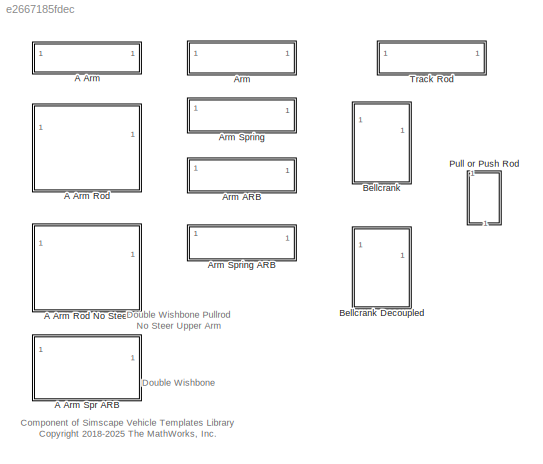
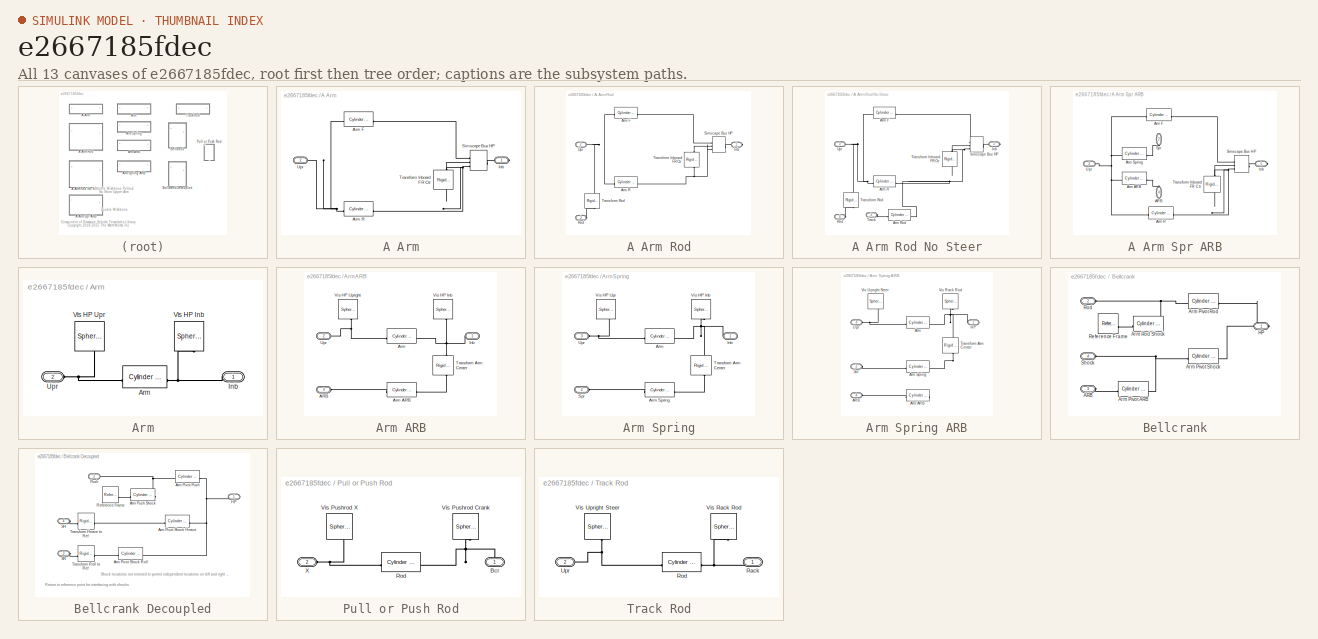
[diagram: thumbnail index - all 13 canvases of the model, root first then tree order]
MODEL slx_e2667185fdec
KIND library
CONFIG AbsTol = auto
CONFIG EnableMultiTasking = off
CONFIG FixedStep = auto
CONFIG MaxStep = auto
CONFIG MinStep = auto
CONFIG RelTol = 1e-3
CONFIG SampleTimeConstraint = Unconstrained
CONFIG SolverName = VariableStepAuto
CONFIG StartTime = 0.0
CONFIG StopTime = 10.0
BLOCK [SubSystem] A Arm
BLOCK [SubSystem] A Arm Rod
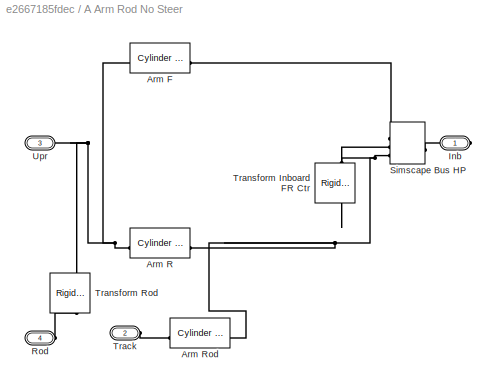
BLOCK [SubSystem] A Arm Rod No Steer
BLOCK [Reference] A Arm Rod No Steer/Arm F  REF=Suspension_Utilities/Cylinder Between
Two Points
  SourceBlock = Suspension_Utilities/Cylinder Between\nTwo Points
  SourceType = Cylinder between two points
BLOCK [Reference] A Arm Rod No Steer/Arm R  REF=Suspension_Utilities/Cylinder Between
Two Points
  SourceBlock = Suspension_Utilities/Cylinder Between\nTwo Points
  SourceType = Cylinder between two points
BLOCK [Reference] A Arm Rod No Steer/Arm Rod  REF=Suspension_Utilities/Cylinder Between
Two Points
  SourceBlock = Suspension_Utilities/Cylinder Between\nTwo Points
  SourceType = Cylinder between two points
BLOCK [PMIOPort] A Arm Rod No Steer/Inb
  Side = Right
BLOCK [PMIOPort] A Arm Rod No Steer/Rod
  Port = 4
  Side = Left
BLOCK [SimscapeBus] A Arm Rod No Steer/Simscape Bus HP
  HierarchyStrings = Af;Ac;Ar
BLOCK [PMIOPort] A Arm Rod No Steer/Track
  Port = 2
  Side = Left
BLOCK [Reference] A Arm Rod No Steer/Transform Inboard FR Ctr  REF=sm_lib/Frames and
Transforms/Rigid
Transform
  NameLocation = left
  SourceBlock = sm_lib/Frames and\nTransforms/Rigid\nTransform
  SourceType = Rigid\nTransform
BLOCK [Reference] A Arm Rod No Steer/Transform Rod  REF=sm_lib/Frames and
Transforms/Rigid
Transform
  NameLocation = right
  SourceBlock = sm_lib/Frames and\nTransforms/Rigid\nTransform
  SourceType = Rigid\nTransform
BLOCK [PMIOPort] A Arm Rod No Steer/Upr
  Port = 3
  Side = Left
BLOCK [Reference] A Arm Rod/Arm F  REF=Suspension_Utilities/Cylinder Between
Two Points
  SourceBlock = Suspension_Utilities/Cylinder Between\nTwo Points
  SourceType = Cylinder between two points
BLOCK [Reference] A Arm Rod/Arm R  REF=Suspension_Utilities/Cylinder Between
Two Points
  SourceBlock = Suspension_Utilities/Cylinder Between\nTwo Points
  SourceType = Cylinder between two points
BLOCK [PMIOPort] A Arm Rod/Inb
  Side = Right
BLOCK [PMIOPort] A Arm Rod/Rod
  Port = 3
  Side = Left
BLOCK [SimscapeBus] A Arm Rod/Simscape Bus HP
  HierarchyStrings = Af;Ac;Ar
BLOCK [Reference] A Arm Rod/Transform Inboard FR Ctr  REF=sm_lib/Frames and
Transforms/Rigid
Transform
  NameLocation = left
  SourceBlock = sm_lib/Frames and\nTransforms/Rigid\nTransform
  SourceType = Rigid\nTransform
BLOCK [Reference] A Arm Rod/Transform Rod  REF=sm_lib/Frames and
Transforms/Rigid
Transform
  NameLocation = right
  SourceBlock = sm_lib/Frames and\nTransforms/Rigid\nTransform
  SourceType = Rigid\nTransform
BLOCK [PMIOPort] A Arm Rod/Upr
  Port = 2
  Side = Left
BLOCK [SubSystem] A Arm Spr ARB
BLOCK [PMIOPort] A Arm Spr ARB/ARB
  NameLocation = right
  Port = 4
  Side = Left
BLOCK [Reference] A Arm Spr ARB/Arm ARB  REF=Suspension_Utilities/Cylinder Between
Two Points
  SourceBlock = Suspension_Utilities/Cylinder Between\nTwo Points
  SourceType = Cylinder between two points
BLOCK [Reference] A Arm Spr ARB/Arm F  REF=Suspension_Utilities/Cylinder Between
Two Points
  SourceBlock = Suspension_Utilities/Cylinder Between\nTwo Points
  SourceType = Cylinder between two points
BLOCK [Reference] A Arm Spr ARB/Arm R  REF=Suspension_Utilities/Cylinder Between
Two Points
  SourceBlock = Suspension_Utilities/Cylinder Between\nTwo Points
  SourceType = Cylinder between two points
BLOCK [Reference] A Arm Spr ARB/Arm Spring  REF=Suspension_Utilities/Cylinder Between
Two Points
  SourceBlock = Suspension_Utilities/Cylinder Between\nTwo Points
  SourceType = Cylinder between two points
BLOCK [PMIOPort] A Arm Spr ARB/Inb
  Side = Right
BLOCK [SimscapeBus] A Arm Spr ARB/Simscape Bus HP
  HierarchyStrings = Af;Ac;Ar
BLOCK [PMIOPort] A Arm Spr ARB/Spr
  NameLocation = right
  Port = 2
  Side = Left
BLOCK [Reference] A Arm Spr ARB/Transform Inboard FR Ctr  REF=sm_lib/Frames and
Transforms/Rigid
Transform
  NameLocation = left
  SourceBlock = sm_lib/Frames and\nTransforms/Rigid\nTransform
  SourceType = Rigid\nTransform
BLOCK [PMIOPort] A Arm Spr ARB/Upr
  Port = 3
  Side = Left
BLOCK [Reference] A Arm/Arm F  REF=Suspension_Utilities/Cylinder Between
Two Points
  SourceBlock = Suspension_Utilities/Cylinder Between\nTwo Points
  SourceType = Cylinder between two points
BLOCK [Reference] A Arm/Arm R  REF=Suspension_Utilities/Cylinder Between
Two Points
  SourceBlock = Suspension_Utilities/Cylinder Between\nTwo Points
  SourceType = Cylinder between two points
BLOCK [PMIOPort] A Arm/Inb
  Side = Right
BLOCK [SimscapeBus] A Arm/Simscape Bus HP
  HierarchyStrings = Af;Ac;Ar
BLOCK [Reference] A Arm/Transform Inboard FR Ctr  REF=sm_lib/Frames and
Transforms/Rigid
Transform
  NameLocation = left
  SourceBlock = sm_lib/Frames and\nTransforms/Rigid\nTransform
  SourceType = Rigid\nTransform
BLOCK [PMIOPort] A Arm/Upr
  Port = 2
  Side = Left
BLOCK [SubSystem] Arm
  VariantControl = Steer
BLOCK [SubSystem] Arm ARB
  VariantControl = Steer
BLOCK [PMIOPort] Arm ARB/ARB
  NameLocation = top
  Port = 3
  Side = Left
BLOCK [Reference] Arm ARB/Arm  REF=Suspension_Utilities/Cylinder Between
Two Points
  SourceBlock = Suspension_Utilities/Cylinder Between\nTwo Points
  SourceType = Cylinder between two points
BLOCK [Reference] Arm ARB/Arm ARB  REF=Suspension_Utilities/Cylinder Between
Two Points
  SourceBlock = Suspension_Utilities/Cylinder Between\nTwo Points
  SourceType = Cylinder between two points
BLOCK [PMIOPort] Arm ARB/Inb
  Side = Right
BLOCK [Reference] Arm ARB/Transform Arm Center  REF=sm_lib/Frames and
Transforms/Rigid
Transform
  NameLocation = left
  SourceBlock = sm_lib/Frames and\nTransforms/Rigid\nTransform
  SourceType = Rigid\nTransform
BLOCK [PMIOPort] Arm ARB/Upr
  NameLocation = top
  Port = 2
  Side = Left
BLOCK [Reference] Arm ARB/Vis HP Inb  REF=sm_lib/Body Elements/Spherical Solid
  NameLocation = right
  SourceBlock = sm_lib/Body Elements/Spherical Solid
  SourceType = Spherical Solid
BLOCK [Reference] Arm ARB/Vis HP Upright  REF=sm_lib/Body Elements/Spherical Solid
  NameLocation = right
  SourceBlock = sm_lib/Body Elements/Spherical Solid
  SourceType = Spherical Solid
BLOCK [SubSystem] Arm Spring
  VariantControl = Steer
BLOCK [SubSystem] Arm Spring ARB
  VariantControl = Steer
BLOCK [PMIOPort] Arm Spring ARB/ARB
  NameLocation = top
  Port = 4
  Side = Left
BLOCK [Reference] Arm Spring ARB/Arm  REF=Suspension_Utilities/Cylinder Between
Two Points
  SourceBlock = Suspension_Utilities/Cylinder Between\nTwo Points
  SourceType = Cylinder between two points
BLOCK [Reference] Arm Spring ARB/Arm ARB  REF=Suspension_Utilities/Cylinder Between
Two Points
  SourceBlock = Suspension_Utilities/Cylinder Between\nTwo Points
  SourceType = Cylinder between two points
BLOCK [Reference] Arm Spring ARB/Arm Spring  REF=Suspension_Utilities/Cylinder Between
Two Points
  SourceBlock = Suspension_Utilities/Cylinder Between\nTwo Points
  SourceType = Cylinder between two points
BLOCK [PMIOPort] Arm Spring ARB/HP
  Side = Right
BLOCK [PMIOPort] Arm Spring ARB/Spr
  NameLocation = top
  Port = 2
  Side = Left
BLOCK [Reference] Arm Spring ARB/Transform Arm Center  REF=sm_lib/Frames and
Transforms/Rigid
Transform
  NameLocation = left
  SourceBlock = sm_lib/Frames and\nTransforms/Rigid\nTransform
  SourceType = Rigid\nTransform
BLOCK [PMIOPort] Arm Spring ARB/Upr
  NameLocation = top
  Port = 3
  Side = Left
BLOCK [Reference] Arm Spring ARB/Vis Rack Rod  REF=sm_lib/Body Elements/Spherical Solid
  NameLocation = right
  SourceBlock = sm_lib/Body Elements/Spherical Solid
  SourceType = Spherical Solid
BLOCK [Reference] Arm Spring ARB/Vis Upright Steer  REF=sm_lib/Body Elements/Spherical Solid
  NameLocation = right
  SourceBlock = sm_lib/Body Elements/Spherical Solid
  SourceType = Spherical Solid
BLOCK [Reference] Arm Spring/Arm  REF=Suspension_Utilities/Cylinder Between
Two Points
  SourceBlock = Suspension_Utilities/Cylinder Between\nTwo Points
  SourceType = Cylinder between two points
BLOCK [Reference] Arm Spring/Arm Spring  REF=Suspension_Utilities/Cylinder Between
Two Points
  SourceBlock = Suspension_Utilities/Cylinder Between\nTwo Points
  SourceType = Cylinder between two points
BLOCK [PMIOPort] Arm Spring/Inb
  Side = Right
BLOCK [PMIOPort] Arm Spring/Spr
  NameLocation = top
  Port = 2
  Side = Left
BLOCK [Reference] Arm Spring/Transform Arm Center  REF=sm_lib/Frames and
Transforms/Rigid
Transform
  NameLocation = left
  SourceBlock = sm_lib/Frames and\nTransforms/Rigid\nTransform
  SourceType = Rigid\nTransform
BLOCK [PMIOPort] Arm Spring/Upr
  NameLocation = top
  Port = 3
  Side = Left
BLOCK [Reference] Arm Spring/Vis HP Inb  REF=sm_lib/Body Elements/Spherical Solid
  NameLocation = right
  SourceBlock = sm_lib/Body Elements/Spherical Solid
  SourceType = Spherical Solid
BLOCK [Reference] Arm Spring/Vis HP Upr  REF=sm_lib/Body Elements/Spherical Solid
  NameLocation = right
  SourceBlock = sm_lib/Body Elements/Spherical Solid
  SourceType = Spherical Solid
BLOCK [Reference] Arm/Arm  REF=Suspension_Utilities/Cylinder Between
Two Points
  SourceBlock = Suspension_Utilities/Cylinder Between\nTwo Points
  SourceType = Cylinder between two points
BLOCK [PMIOPort] Arm/Inb
  Side = Right
BLOCK [PMIOPort] Arm/Upr
  Port = 2
  Side = Left
BLOCK [Reference] Arm/Vis HP Inb  REF=sm_lib/Body Elements/Spherical Solid
  NameLocation = right
  SourceBlock = sm_lib/Body Elements/Spherical Solid
  SourceType = Spherical Solid
BLOCK [Reference] Arm/Vis HP Upr  REF=sm_lib/Body Elements/Spherical Solid
  NameLocation = right
  SourceBlock = sm_lib/Body Elements/Spherical Solid
  SourceType = Spherical Solid
BLOCK [SubSystem] Bellcrank
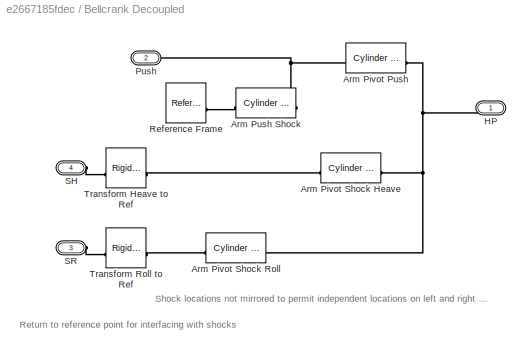
BLOCK [SubSystem] Bellcrank Decoupled
BLOCK [Reference] Bellcrank Decoupled/Arm Pivot Push  REF=Suspension_Utilities/Cylinder Between
Two Points
  SourceBlock = Suspension_Utilities/Cylinder Between\nTwo Points
  SourceType = Cylinder between two points
BLOCK [Reference] Bellcrank Decoupled/Arm Pivot Shock Heave  REF=Suspension_Utilities/Cylinder Between
Two Points
  SourceBlock = Suspension_Utilities/Cylinder Between\nTwo Points
  SourceType = Cylinder between two points
BLOCK [Reference] Bellcrank Decoupled/Arm Pivot Shock Roll  REF=Suspension_Utilities/Cylinder Between
Two Points
  SourceBlock = Suspension_Utilities/Cylinder Between\nTwo Points
  SourceType = Cylinder between two points
BLOCK [Reference] Bellcrank Decoupled/Arm Push Shock  REF=Suspension_Utilities/Cylinder Between
Two Points
  SourceBlock = Suspension_Utilities/Cylinder Between\nTwo Points
  SourceType = Cylinder between two points
BLOCK [PMIOPort] Bellcrank Decoupled/HP
  Side = Right
BLOCK [PMIOPort] Bellcrank Decoupled/Push
  Port = 2
  Side = Left
BLOCK [Reference] Bellcrank Decoupled/Reference Frame  REF=sm_lib/Frames and
Transforms/Reference
Frame
  SourceBlock = sm_lib/Frames and\nTransforms/Reference\nFrame
  SourceType = Reference\nFrame
BLOCK [PMIOPort] Bellcrank Decoupled/SH
  Port = 4
  Side = Left
BLOCK [PMIOPort] Bellcrank Decoupled/SR
  Port = 3
  Side = Left
BLOCK [Reference] Bellcrank Decoupled/Transform Heave to Ref  REF=sm_lib/Frames and
Transforms/Rigid
Transform
  SourceBlock = sm_lib/Frames and\nTransforms/Rigid\nTransform
  SourceType = Rigid\nTransform
BLOCK [Reference] Bellcrank Decoupled/Transform Roll to Ref  REF=sm_lib/Frames and
Transforms/Rigid
Transform
  SourceBlock = sm_lib/Frames and\nTransforms/Rigid\nTransform
  SourceType = Rigid\nTransform
BLOCK [PMIOPort] Bellcrank/ARB
  Port = 3
  Side = Left
BLOCK [Reference] Bellcrank/Arm Pivot ARB  REF=Suspension_Utilities/Cylinder Between
Two Points
  SourceBlock = Suspension_Utilities/Cylinder Between\nTwo Points
  SourceType = Cylinder between two points
BLOCK [Reference] Bellcrank/Arm Pivot Rod  REF=Suspension_Utilities/Cylinder Between
Two Points
  SourceBlock = Suspension_Utilities/Cylinder Between\nTwo Points
  SourceType = Cylinder between two points
BLOCK [Reference] Bellcrank/Arm Pivot Shock  REF=Suspension_Utilities/Cylinder Between
Two Points
  SourceBlock = Suspension_Utilities/Cylinder Between\nTwo Points
  SourceType = Cylinder between two points
BLOCK [Reference] Bellcrank/Arm Rod Shock  REF=Suspension_Utilities/Cylinder Between
Two Points
  SourceBlock = Suspension_Utilities/Cylinder Between\nTwo Points
  SourceType = Cylinder between two points
BLOCK [PMIOPort] Bellcrank/HP
  Side = Right
BLOCK [Reference] Bellcrank/Reference Frame  REF=sm_lib/Frames and
Transforms/Reference
Frame
  SourceBlock = sm_lib/Frames and\nTransforms/Reference\nFrame
  SourceType = Reference\nFrame
BLOCK [PMIOPort] Bellcrank/Rod
  Port = 2
  Side = Left
BLOCK [PMIOPort] Bellcrank/Shock
  Port = 4
  Side = Left
BLOCK [SubSystem] Pull or Push Rod
  NameLocation = left
  VariantControl = Steer
BLOCK [PMIOPort] Pull or Push Rod/Bcr
  Side = Right
BLOCK [Reference] Pull or Push Rod/Rod  REF=Suspension_Utilities/Cylinder Between
Two Points
  SourceBlock = Suspension_Utilities/Cylinder Between\nTwo Points
  SourceType = Cylinder between two points
BLOCK [Reference] Pull or Push Rod/Vis Pushrod Crank  REF=sm_lib/Body Elements/Spherical Solid
  NameLocation = right
  SourceBlock = sm_lib/Body Elements/Spherical Solid
  SourceType = Spherical Solid
BLOCK [Reference] Pull or Push Rod/Vis Pushrod X  REF=sm_lib/Body Elements/Spherical Solid
  NameLocation = right
  SourceBlock = sm_lib/Body Elements/Spherical Solid
  SourceType = Spherical Solid
BLOCK [PMIOPort] Pull or Push Rod/X
  NameLocation = top
  Port = 2
  Side = Left
BLOCK [SubSystem] Track Rod
  VariantControl = Steer
BLOCK [PMIOPort] Track Rod/Rack
  Side = Right
BLOCK [Reference] Track Rod/Rod  REF=Suspension_Utilities/Cylinder Between
Two Points
  SourceBlock = Suspension_Utilities/Cylinder Between\nTwo Points
  SourceType = Cylinder between two points
BLOCK [PMIOPort] Track Rod/Upr
  NameLocation = top
  Port = 2
  Side = Left
BLOCK [Reference] Track Rod/Vis Rack Rod  REF=sm_lib/Body Elements/Spherical Solid
  NameLocation = right
  SourceBlock = sm_lib/Body Elements/Spherical Solid
  SourceType = Spherical Solid
BLOCK [Reference] Track Rod/Vis Upright Steer  REF=sm_lib/Body Elements/Spherical Solid
  NameLocation = right
  SourceBlock = sm_lib/Body Elements/Spherical Solid
  SourceType = Spherical Solid
ANNOTATION (root): Component of Simscape Vehicle Templates Library <copyright redacted>
ANNOTATION (root): Double Wishbone
ANNOTATION (root): Double Wishbone Pullrod No Steer Upper Arm
ANNOTATION Bellcrank Decoupled: Return to reference point for interfacing with shocks
ANNOTATION Bellcrank Decoupled: Shock locations not mirrored to permit independent locations on left and right sides.
PLINE A Arm Rod No Steer/Arm F:LConn1 -- A Arm Rod No Steer/Simscape Bus HP:LConn1
PNET net1: A Arm Rod No Steer/Arm F:RConn1 -- A Arm Rod No Steer/Arm R:RConn1 -- A Arm Rod No Steer/Transform Rod:LConn1 -- A Arm Rod No Steer/Upr:RConn1
PNET net2: A Arm Rod No Steer/Arm R:LConn1 -- A Arm Rod No Steer/Arm Rod:LConn1 -- A Arm Rod No Steer/Simscape Bus HP:LConn3 -- A Arm Rod No Steer/Transform Inboard FR Ctr:LConn1
PLINE A Arm Rod No Steer/Arm Rod:RConn1 -- A Arm Rod No Steer/Track:RConn1
PLINE A Arm Rod No Steer/Inb:RConn1 -- A Arm Rod No Steer/Simscape Bus HP:RConn1
PLINE A Arm Rod No Steer/Rod:RConn1 -- A Arm Rod No Steer/Transform Rod:RConn1
PLINE A Arm Rod No Steer/Simscape Bus HP:LConn2 -- A Arm Rod No Steer/Transform Inboard FR Ctr:RConn1
PLINE A Arm Rod/Arm F:LConn1 -- A Arm Rod/Simscape Bus HP:LConn1
PNET net3: A Arm Rod/Arm F:RConn1 -- A Arm Rod/Arm R:RConn1 -- A Arm Rod/Transform Rod:LConn1 -- A Arm Rod/Upr:RConn1
PNET net4: A Arm Rod/Arm R:LConn1 -- A Arm Rod/Simscape Bus HP:LConn3 -- A Arm Rod/Transform Inboard FR Ctr:LConn1
PLINE A Arm Rod/Inb:RConn1 -- A Arm Rod/Simscape Bus HP:RConn1
PLINE A Arm Rod/Rod:RConn1 -- A Arm Rod/Transform Rod:RConn1
PLINE A Arm Rod/Simscape Bus HP:LConn2 -- A Arm Rod/Transform Inboard FR Ctr:RConn1
PLINE A Arm Spr ARB/ARB:RConn1 -- A Arm Spr ARB/Arm ARB:LConn1
PNET net5: A Arm Spr ARB/Arm ARB:RConn1 -- A Arm Spr ARB/Arm F:RConn1 -- A Arm Spr ARB/Arm R:RConn1 -- A Arm Spr ARB/Arm Spring:RConn1 -- A Arm Spr ARB/Upr:RConn1
PLINE A Arm Spr ARB/Arm F:LConn1 -- A Arm Spr ARB/Simscape Bus HP:LConn1
PNET net6: A Arm Spr ARB/Arm R:LConn1 -- A Arm Spr ARB/Simscape Bus HP:LConn3 -- A Arm Spr ARB/Transform Inboard FR Ctr:LConn1
PLINE A Arm Spr ARB/Arm Spring:LConn1 -- A Arm Spr ARB/Spr:RConn1
PLINE A Arm Spr ARB/Inb:RConn1 -- A Arm Spr ARB/Simscape Bus HP:RConn1
PLINE A Arm Spr ARB/Simscape Bus HP:LConn2 -- A Arm Spr ARB/Transform Inboard FR Ctr:RConn1
PLINE A Arm/Arm F:LConn1 -- A Arm/Simscape Bus HP:LConn1
PNET net7: A Arm/Arm F:RConn1 -- A Arm/Arm R:RConn1 -- A Arm/Upr:RConn1
PNET net8: A Arm/Arm R:LConn1 -- A Arm/Simscape Bus HP:LConn3 -- A Arm/Transform Inboard FR Ctr:LConn1
PLINE A Arm/Inb:RConn1 -- A Arm/Simscape Bus HP:RConn1
PLINE A Arm/Simscape Bus HP:LConn2 -- A Arm/Transform Inboard FR Ctr:RConn1
PNET net9: Bellcrank Decoupled/Arm Pivot Push:LConn1 -- Bellcrank Decoupled/Arm Pivot Shock Heave:LConn1 -- Bellcrank Decoupled/Arm Pivot Shock Roll:LConn1 -- Bellcrank Decoupled/HP:RConn1
PNET net10: Bellcrank Decoupled/Arm Pivot Push:RConn1 -- Bellcrank Decoupled/Arm Push Shock:LConn1 -- Bellcrank Decoupled/Push:RConn1
PLINE Bellcrank Decoupled/Arm Pivot Shock Heave:RConn1 -- Bellcrank Decoupled/Transform Heave to Ref:RConn1
PLINE Bellcrank Decoupled/Arm Pivot Shock Roll:RConn1 -- Bellcrank Decoupled/Transform Roll to Ref:RConn1
PLINE Bellcrank Decoupled/Arm Push Shock:RConn1 -- Bellcrank Decoupled/Reference Frame:RConn1
PLINE Bellcrank Decoupled/SH:RConn1 -- Bellcrank Decoupled/Transform Heave to Ref:LConn1
PLINE Bellcrank Decoupled/SR:RConn1 -- Bellcrank Decoupled/Transform Roll to Ref:LConn1
PLINE Bellcrank/ARB:RConn1 -- Bellcrank/Arm Pivot ARB:RConn1
PNET net11: Bellcrank/Arm Pivot ARB:LConn1 -- Bellcrank/Arm Pivot Shock:RConn1 -- Bellcrank/Shock:RConn1
PNET net12: Bellcrank/Arm Pivot Rod:LConn1 -- Bellcrank/Arm Pivot Shock:LConn1 -- Bellcrank/HP:RConn1
PNET net13: Bellcrank/Arm Pivot Rod:RConn1 -- Bellcrank/Arm Rod Shock:LConn1 -- Bellcrank/Rod:RConn1
PLINE Bellcrank/Arm Rod Shock:RConn1 -- Bellcrank/Reference Frame:RConn1
note: PNET lines group multi-terminal physical nets as a canonical sorted terminal list (undirected conserving connections); 2-terminal nets keep the pairwise PLINE form
